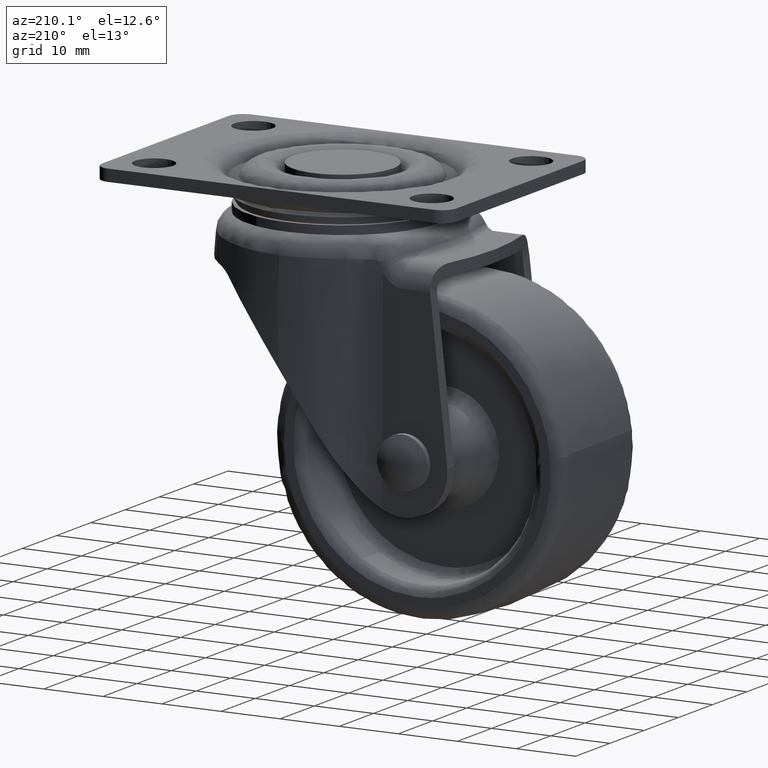
[diagram: clean part render]
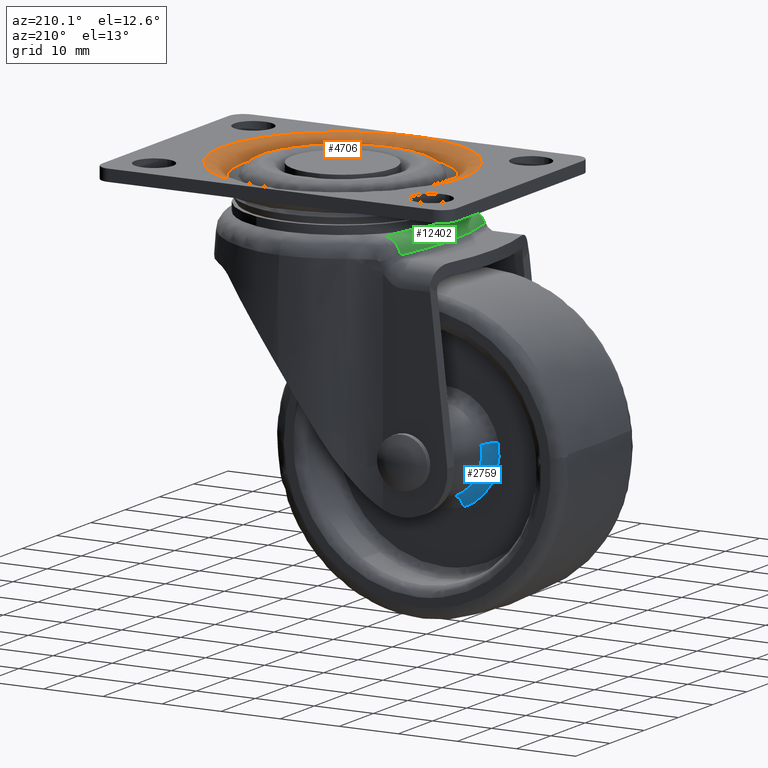
[diagram: same view with three faces highlighted in distinct colors, each labeled with its STEP entity id]
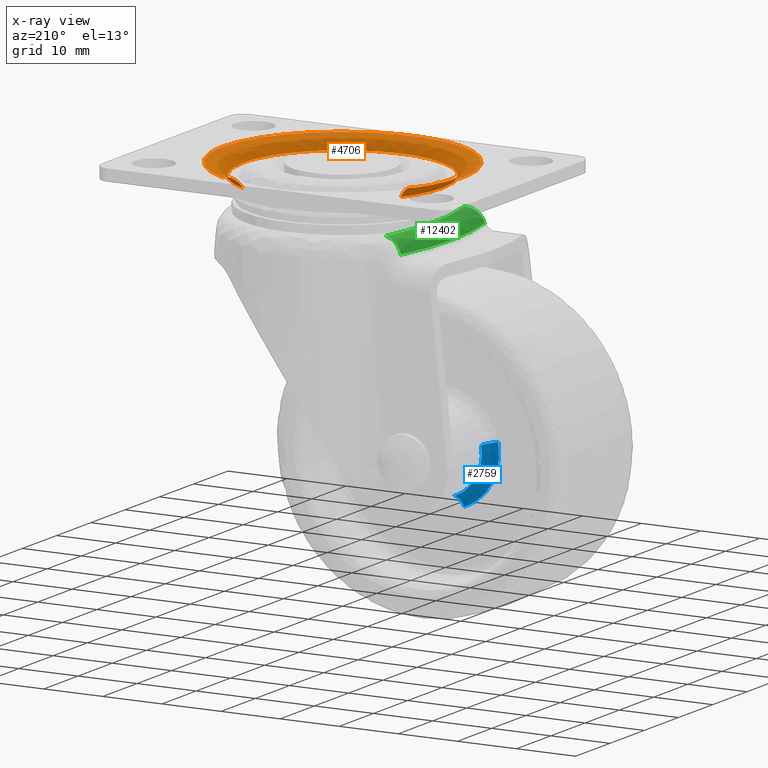
[diagram: x-ray of the same camera — body ghosted, the three highlighted faces saturated]
A machine part, auxiliary view with three faces highlighted in distinct colors.
The next image is the same camera in x-ray (body ghosted, the three faces saturated) — at least one of them is partly hidden behind the body in this view.
Their STEP definitions:

[orange] entity #4706 — the highlighted face is a freeform B-spline surface patch.
#4551=CARTESIAN_POINT('',(8.280344166626080,14.623558427903077,-2.174093960500593));
#4552=CARTESIAN_POINT('',(22.903902594529157,6.343207261277074,-2.174093960500593));
#4553=CARTESIAN_POINT('',(14.623551427903156,-8.280351166626007,-2.174093960500593));
#4554=CARTESIAN_POINT('',(6.343200261277150,-22.903909594529090,-2.174093960500593));
#4555=CARTESIAN_POINT('',(-8.280358166625929,-14.623558427903088,-2.174093960500593));
#4556=CARTESIAN_POINT('',(-22.903916594529008,-6.343207261277066,-2.174093960500593));
#4557=CARTESIAN_POINT('',(-14.623565427903010,8.280351166625998,-2.174093960500593));
#4558=CARTESIAN_POINT('',(8.861078083661916,15.649166665518310,0.123181094649919));
#4559=CARTESIAN_POINT('',(24.510244749180224,6.788081581856476,0.123181094649919));
#4560=CARTESIAN_POINT('',(15.649159665518393,-8.861085083661843,0.123181094649919));
#4561=CARTESIAN_POINT('',(6.788074581856552,-24.510251749180156,0.123181094649919));
#4562=CARTESIAN_POINT('',(-8.861092083661765,-15.649166665518322,0.123181094649919));
#4563=CARTESIAN_POINT('',(-24.510258749180082,-6.788081581856467,0.123181094649919));
#4564=CARTESIAN_POINT('',(-15.649173665518253,8.861085083661832,0.123181094649919));
#4565=CARTESIAN_POINT('',(10.131721040897920,17.893192450443518,-0.004926556543048));
#4566=CARTESIAN_POINT('',(28.024913491341440,7.761464409545676,-0.004926556543048));
#4567=CARTESIAN_POINT('',(17.893185450443593,-10.131728040897842,-0.004926556543048));
#4568=CARTESIAN_POINT('',(7.761457409545753,-28.024920491341366,-0.004926556543048));
#4569=CARTESIAN_POINT('',(-10.131735040897770,-17.893192450443518,-0.004926556543048));
#4570=CARTESIAN_POINT('',(-28.024927491341295,-7.761464409545668,-0.004926556543048));
#4571=CARTESIAN_POINT('',(-17.893199450443454,10.131728040897833,-0.004926556543048));
#4579=(BOUNDED_SURFACE()B_SPLINE_SURFACE(2,2,((#4551,#4558,#4565),(#4552,#4559,#4566),(#4553,#4560,#4567),(#4554,#4561,#4568),(#4555,#4562,#4569),(#4556,#4563,#4570),(#4557,#4564,#4571)),.UNSPECIFIED.,.F.,.F.,.U.)B_SPLINE_SURFACE_WITH_KNOTS((3,2,2,3),(3,3),(0.0,34.069139752857502,68.138279505714991,102.207419258572500),(0.0,4.715427621090448),.UNSPECIFIED.)GEOMETRIC_REPRESENTATION_ITEM()RATIONAL_B_SPLINE_SURFACE(((0.922412950217596,0.774512720686731,0.921293602765448),(0.652244452153151,0.547663196912830,0.651452953979234),(0.922412950217596,0.774512720686731,0.921293602765448),(0.652244452153151,0.547663196912830,0.651452953979234),(0.922412950217596,0.774512720686731,0.921293602765448),(0.652244452153151,0.547663196912830,0.651452953979234),(0.922412950217596,0.774512720686731,0.921293602765448)))REPRESENTATION_ITEM('')SURFACE());
#4580=CARTESIAN_POINT('',(16.899993000000070,0.0,-1.999963000000160));
#4581=VERTEX_POINT('',#4580);
#4582=CARTESIAN_POINT('',(8.327085072241655,14.706105454029579,-1.999962999763023));
#4583=VERTEX_POINT('',#4582);
#4584=CARTESIAN_POINT('',(16.899993000000070,0.0,-1.999963000000160));
#4585=CARTESIAN_POINT('',(16.899993000000073,9.851836329763339,-1.999963000000161));
#4586=CARTESIAN_POINT('',(8.327085072241655,14.706105454029581,-1.999962999763023));
#4594=(BOUNDED_CURVE()B_SPLINE_CURVE(2,(#4584,#4585,#4586),.UNSPECIFIED.,.F.,.U.)B_SPLINE_CURVE_WITH_KNOTS((3,3),(0.500000000000000,0.666016361515287),.UNSPECIFIED.)CURVE()GEOMETRIC_REPRESENTATION_ITEM()RATIONAL_B_SPLINE_CURVE((1.0,0.805499734000360,0.869321279800845))REPRESENTATION_ITEM(''));
#4595=EDGE_CURVE('',#4581,#4583,#4594,.T.);
#4596=ORIENTED_EDGE('',*,*,#4595,.F.);
#4597=CARTESIAN_POINT('',(-16.900006999999921,0.0,-1.999963000000160));
#4598=VERTEX_POINT('',#4597);
#4599=CARTESIAN_POINT('',(-16.900006999999921,0.0,-1.999963000000160));
#4600=CARTESIAN_POINT('',(-16.900006999999928,-16.899999999999991,-1.999963000000159));
#4601=CARTESIAN_POINT('',(-0.000006999999925,-16.899999999999999,-1.999963000000160));
#4602=CARTESIAN_POINT('',(16.899993000000077,-16.899999999999991,-1.999963000000159));
#4603=CARTESIAN_POINT('',(16.899993000000070,0.0,-1.999963000000160));
#4611=(BOUNDED_CURVE()B_SPLINE_CURVE(2,(#4599,#4600,#4601,#4602,#4603),.UNSPECIFIED.,.F.,.U.)B_SPLINE_CURVE_WITH_KNOTS((3,2,3),(0.0,0.250000000000000,0.500000000000000),.UNSPECIFIED.)CURVE()GEOMETRIC_REPRESENTATION_ITEM()RATIONAL_B_SPLINE_CURVE((1.0,0.707106781186548,1.0,0.707106781186548,1.0))REPRESENTATION_ITEM(''));
#4612=EDGE_CURVE('',#4598,#4581,#4611,.T.);
#4613=ORIENTED_EDGE('',*,*,#4612,.F.);
#4614=CARTESIAN_POINT('',(-14.706112454092610,8.327092072286732,-1.999962999629391));
#4615=VERTEX_POINT('',#4614);
#4616=CARTESIAN_POINT('',(-14.706112454092604,8.327092072286732,-1.999962999629392));
#4617=CARTESIAN_POINT('',(-16.900006999999924,4.452552884928871,-1.999963000000161));
#4618=CARTESIAN_POINT('',(-16.900006999999921,0.0,-1.999963000000160));
#4626=(BOUNDED_CURVE()B_SPLINE_CURVE(2,(#4616,#4617,#4618),.UNSPECIFIED.,.F.,.U.)B_SPLINE_CURVE_WITH_KNOTS((3,3),(0.916016361515138,1.0),.UNSPECIFIED.)CURVE()GEOMETRIC_REPRESENTATION_ITEM()RATIONAL_B_SPLINE_CURVE((0.869321279800731,0.901607047186014,1.0))REPRESENTATION_ITEM(''));
#4627=EDGE_CURVE('',#4615,#4598,#4626,.T.);
#4628=ORIENTED_EDGE('',*,*,#4627,.F.);
#4629=CARTESIAN_POINT('',(-17.720498814197430,10.033939125784650,-6.109730E-016));
#4630=VERTEX_POINT('',#4629);
#4631=CARTESIAN_POINT('',(-14.706112454092606,8.327092072286732,-1.999962999629391));
#4632=CARTESIAN_POINT('',(-15.710920300035561,8.896048107174993,-8.546550E-010));
#4633=CARTESIAN_POINT('',(-17.720498814197423,10.033939125784650,-6.109730E-016));
#4641=(BOUNDED_CURVE()B_SPLINE_CURVE(2,(#4631,#4632,#4633),.UNSPECIFIED.,.F.,.U.)B_SPLINE_CURVE_WITH_KNOTS((3,3),(-1.635977675160171,-0.369314626670736),.UNSPECIFIED.)CURVE()GEOMETRIC_REPRESENTATION_ITEM()RATIONAL_B_SPLINE_CURVE((0.909587424262283,0.787287434080422,0.908569702277315))REPRESENTATION_ITEM(''));
#4642=EDGE_CURVE('',#4615,#4630,#4641,.T.);
#4643=ORIENTED_EDGE('',*,*,#4642,.T.);
#4644=CARTESIAN_POINT('',(-20.364087252914331,0.0,0.0));
#4645=VERTEX_POINT('',#4644);
#4646=CARTESIAN_POINT('',(-20.364087252914331,0.0,0.0));
#4647=CARTESIAN_POINT('',(-20.364087252914331,5.365215637857751,0.0));
#4648=CARTESIAN_POINT('',(-17.720498814197430,10.033939125784650,-6.109730E-016));
#4656=(BOUNDED_CURVE()B_SPLINE_CURVE(2,(#4646,#4647,#4648),.UNSPECIFIED.,.F.,.U.)B_SPLINE_CURVE_WITH_KNOTS((3,3),(0.0,0.083983638485495),.UNSPECIFIED.)CURVE()GEOMETRIC_REPRESENTATION_ITEM()RATIONAL_B_SPLINE_CURVE((1.0,0.901607047185272,0.869321279800244))REPRESENTATION_ITEM(''));
#4657=EDGE_CURVE('',#4645,#4630,#4656,.T.);
#4658=ORIENTED_EDGE('',*,*,#4657,.F.);
#4659=CARTESIAN_POINT('',(20.364073252914469,0.0,0.0));
#4660=VERTEX_POINT('',#4659);
#4661=CARTESIAN_POINT('',(20.364073252914469,0.0,0.0));
#4662=CARTESIAN_POINT('',(20.364073252914473,-20.364080252914405,0.0));
#4663=CARTESIAN_POINT('',(-0.000006999999925,-20.364080252914398,0.0));
#4664=CARTESIAN_POINT('',(-20.364087252914320,-20.364080252914405,0.0));
#4665=CARTESIAN_POINT('',(-20.364087252914331,0.0,0.0));
#4673=(BOUNDED_CURVE()B_SPLINE_CURVE(2,(#4661,#4662,#4663,#4664,#4665),.UNSPECIFIED.,.F.,.U.)B_SPLINE_CURVE_WITH_KNOTS((3,2,3),(0.500000000000000,0.750000000000000,1.0),.UNSPECIFIED.)CURVE()GEOMETRIC_REPRESENTATION_ITEM()RATIONAL_B_SPLINE_CURVE((1.0,0.707106781186548,1.0,0.707106781186548,1.0))REPRESENTATION_ITEM(''));
#4674=EDGE_CURVE('',#4660,#4645,#4673,.T.);
#4675=ORIENTED_EDGE('',*,*,#4674,.F.);
#4676=CARTESIAN_POINT('',(10.033932125784720,17.720491814197491,-6.720702E-016));
#4677=VERTEX_POINT('',#4676);
#4678=CARTESIAN_POINT('',(10.033932125784723,17.720491814197498,-6.720702E-016));
#4679=CARTESIAN_POINT('',(20.364073252914476,11.871218086195571,0.0));
#4680=CARTESIAN_POINT('',(20.364073252914469,0.0,0.0));
#4688=(BOUNDED_CURVE()B_SPLINE_CURVE(2,(#4678,#4679,#4680),.UNSPECIFIED.,.F.,.U.)B_SPLINE_CURVE_WITH_KNOTS((3,3),(0.333983638485496,0.500000000000000),.UNSPECIFIED.)CURVE()GEOMETRIC_REPRESENTATION_ITEM()RATIONAL_B_SPLINE_CURVE((0.869321279800244,0.805499734001276,1.0))REPRESENTATION_ITEM(''));
#4689=EDGE_CURVE('',#4677,#4660,#4688,.T.);
#4690=ORIENTED_EDGE('',*,*,#4689,.F.);
#4691=CARTESIAN_POINT('',(8.327085072241655,14.706105454029583,-1.999962999763024));
#4692=CARTESIAN_POINT('',(8.896041107073689,15.710913299856603,-8.546607E-010));
#4693=CARTESIAN_POINT('',(10.033932125784723,17.720491814197494,-6.720702E-016));
#4701=(BOUNDED_CURVE()B_SPLINE_CURVE(2,(#4691,#4692,#4693),.UNSPECIFIED.,.F.,.U.)B_SPLINE_CURVE_WITH_KNOTS((3,3),(-1.635977675257954,-0.369314626670739),.UNSPECIFIED.)CURVE()GEOMETRIC_REPRESENTATION_ITEM()RATIONAL_B_SPLINE_CURVE((0.909587424281166,0.787287434071060,0.908569702277315))REPRESENTATION_ITEM(''));
#4702=EDGE_CURVE('',#4583,#4677,#4701,.T.);
#4703=ORIENTED_EDGE('',*,*,#4702,.F.);
#4704=EDGE_LOOP('',(#4596,#4613,#4628,#4643,#4658,#4675,#4690,#4703));
#4705=FACE_OUTER_BOUND('',#4704,.T.);
#4706=ADVANCED_FACE('',(#4705),#4579,.T.);

[blue] entity #2759 — the highlighted face is a freeform B-spline surface patch.
#929=CARTESIAN_POINT('',(-21.581159640762991,4.652704545841395,-46.777003849779888));
#930=VERTEX_POINT('',#929);
#944=CARTESIAN_POINT('',(-26.122998483508631,4.652704545884804,-38.641714368788982));
#945=VERTEX_POINT('',#944);
#946=CARTESIAN_POINT('',(-26.122998483508631,4.652704545884803,-38.641714368788982));
#947=CARTESIAN_POINT('',(-26.251441447704504,4.652704546117460,-39.315035966931404));
#948=CARTESIAN_POINT('',(-26.251441447704511,4.652704546117460,-40.000499000000097));
#949=CARTESIAN_POINT('',(-26.251441447704504,4.652704546117461,-44.998101129439050));
#950=CARTESIAN_POINT('',(-21.581159640762994,4.652704545841395,-46.777003849779888));
#958=(BOUNDED_CURVE()B_SPLINE_CURVE(2,(#946,#947,#948,#949,#950),.UNSPECIFIED.,.F.,.U.)B_SPLINE_CURVE_WITH_KNOTS((3,2,3),(0.717838633736233,0.750000000000000,0.939552769333913),.UNSPECIFIED.)CURVE()GEOMETRIC_REPRESENTATION_ITEM()RATIONAL_B_SPLINE_CURVE((0.934335795152827,0.962320615654268,1.0,0.777925117019146,0.892609506586496))REPRESENTATION_ITEM(''));
#959=EDGE_CURVE('',#945,#930,#958,.T.);
#2639=CARTESIAN_POINT('',(-22.282246796789380,3.0,-48.617618602265068));
#2640=VERTEX_POINT('',#2639);
#2656=CARTESIAN_POINT('',(-22.282246796789376,3.000000000000000,-48.617618602265068));
#2657=CARTESIAN_POINT('',(-21.684889395754688,3.000000000046670,-47.049333068419962));
#2658=CARTESIAN_POINT('',(-21.581159640762991,4.652704545841396,-46.777003849779888));
#2666=(BOUNDED_CURVE()B_SPLINE_CURVE(2,(#2656,#2657,#2658),.UNSPECIFIED.,.F.,.U.)B_SPLINE_CURVE_WITH_KNOTS((3,3),(-1.699374434042676,-0.299104234625843),.UNSPECIFIED.)CURVE()GEOMETRIC_REPRESENTATION_ITEM()RATIONAL_B_SPLINE_CURVE((0.836173455112642,0.640708742115867,0.836598644507058))REPRESENTATION_ITEM(''));
#2667=EDGE_CURVE('',#2640,#930,#2666,.T.);
#2674=CARTESIAN_POINT('',(-28.057726838156011,3.0,-38.272645196332398));
#2675=VERTEX_POINT('',#2674);
#2676=CARTESIAN_POINT('',(-28.057726838156007,3.0,-38.272645196332398));
#2677=CARTESIAN_POINT('',(-26.409252334184764,3.000000003074429,-38.587108526442641));
#2678=CARTESIAN_POINT('',(-26.122998483508628,4.652704545884804,-38.641714368788989));
#2686=(BOUNDED_CURVE()B_SPLINE_CURVE(2,(#2676,#2677,#2678),.UNSPECIFIED.,.F.,.U.)B_SPLINE_CURVE_WITH_KNOTS((3,3),(-1.699374432078043,-0.299104234577822),.UNSPECIFIED.)CURVE()GEOMETRIC_REPRESENTATION_ITEM()RATIONAL_B_SPLINE_CURVE((0.891308979333242,0.682955733773965,0.891762205424001))REPRESENTATION_ITEM(''));
#2687=EDGE_CURVE('',#2675,#945,#2686,.T.);
#2722=CARTESIAN_POINT('',(-28.182331571436322,3.004026887481622,-38.248875572594983));
#2723=CARTESIAN_POINT('',(-29.650770508750540,3.004026887481623,-45.946702059650924));
#2724=CARTESIAN_POINT('',(-22.327399790221204,3.004026887481623,-48.736162017497186));
#2725=CARTESIAN_POINT('',(-26.312940167450428,2.883077667061051,-38.605481054844994));
#2726=CARTESIAN_POINT('',(-27.482425935263286,2.883077667061052,-44.736140145219089));
#2727=CARTESIAN_POINT('',(-21.649988773523305,2.883077667061051,-46.957705943897551));
#2728=CARTESIAN_POINT('',(-26.105263944713943,4.778261440697989,-38.645097413090170));
#2729=CARTESIAN_POINT('',(-27.241538120302316,4.778261440697989,-44.601655240002444));
#2730=CARTESIAN_POINT('',(-21.574733179168934,4.778261440697989,-46.760131996098082));
#2738=(BOUNDED_SURFACE()B_SPLINE_SURFACE(2,2,((#2722,#2725,#2728),(#2723,#2726,#2729),(#2724,#2727,#2730)),.UNSPECIFIED.,.F.,.F.,.U.)B_SPLINE_SURFACE_WITH_KNOTS((3,3),(3,3),(0.0,13.595956791642690),(0.0,3.202648635124233),.UNSPECIFIED.)GEOMETRIC_REPRESENTATION_ITEM()RATIONAL_B_SPLINE_SURFACE(((0.913164367681406,0.661077738289552,0.913662807919729),(0.677799874840163,0.490687574034433,0.678169844084592),(0.856676889399508,0.620184098868323,0.857144496599296)))REPRESENTATION_ITEM('')SURFACE());
#2739=CARTESIAN_POINT('',(-28.057726838156011,3.000000000000000,-38.272645196332391));
#2740=CARTESIAN_POINT('',(-28.221057112678903,3.000000000000000,-39.128852469581155));
#2741=CARTESIAN_POINT('',(-28.221057112678899,3.0,-40.000499000000097));
#2742=CARTESIAN_POINT('',(-28.221057112678906,3.000000000000000,-46.355535442740127));
#2743=CARTESIAN_POINT('',(-22.282246796789384,3.000000000000000,-48.617618602265068));
#2751=(BOUNDED_CURVE()B_SPLINE_CURVE(2,(#2739,#2740,#2741,#2742,#2743),.UNSPECIFIED.,.F.,.U.)B_SPLINE_CURVE_WITH_KNOTS((3,2,3),(0.717838633727070,0.750000000000000,0.939552769335690),.UNSPECIFIED.)CURVE()GEOMETRIC_REPRESENTATION_ITEM()RATIONAL_B_SPLINE_CURVE((0.934335795136880,0.962320615643533,1.0,0.777925117017064,0.892609506588646))REPRESENTATION_ITEM(''));
#2752=EDGE_CURVE('',#2675,#2640,#2751,.T.);
#2753=ORIENTED_EDGE('',*,*,#2752,.F.);
#2754=ORIENTED_EDGE('',*,*,#2687,.T.);
#2755=ORIENTED_EDGE('',*,*,#959,.T.);
#2756=ORIENTED_EDGE('',*,*,#2667,.F.);
#2757=EDGE_LOOP('',(#2753,#2754,#2755,#2756));
#2758=FACE_OUTER_BOUND('',#2757,.T.);
#2759=ADVANCED_FACE('',(#2758),#2738,.F.);

[green] entity #12402 — the highlighted face is a freeform B-spline surface patch.
#7885=CARTESIAN_POINT('',(-14.869671297431900,6.554035055317600,-7.312300000000000));
#7886=VERTEX_POINT('',#7885);
#7900=CARTESIAN_POINT('',(-14.869671297431900,-6.554035055317600,-7.312300000000000));
#7901=VERTEX_POINT('',#7900);
#9431=CARTESIAN_POINT('',(-14.869671297431900,6.554035055317616,-7.312300000000000));
#9432=CARTESIAN_POINT('',(-15.796220195287614,2.168404E-014,-7.312300000000000));
#9433=CARTESIAN_POINT('',(-14.869671297431900,-6.554035055317593,-7.312300000000000));
#9441=(BOUNDED_CURVE()B_SPLINE_CURVE(2,(#9431,#9432,#9433),.UNSPECIFIED.,.F.,.U.)CURVE()GEOMETRIC_REPRESENTATION_ITEM()QUASI_UNIFORM_CURVE()RATIONAL_B_SPLINE_CURVE((1.0,0.990154488175586,1.0))REPRESENTATION_ITEM(''));
#9442=EDGE_CURVE('',#7886,#7901,#9441,.T.);
#11238=CARTESIAN_POINT('',(-16.936590326066050,-12.249797822229620,-9.639758110070270));
#11239=VERTEX_POINT('',#11238);
#11385=CARTESIAN_POINT('',(-13.878344654079660,-11.571070394429320,-7.312300000000000));
#11386=VERTEX_POINT('',#11385);
#11400=CARTESIAN_POINT('',(-16.936590326066050,-12.249797822229620,-9.639758110070270));
#11401=CARTESIAN_POINT('',(-16.887064896134710,-12.238845087086810,-9.471330714252082));
#11402=CARTESIAN_POINT('',(-16.824769174000039,-12.225066549350640,-9.308390826820720));
#11403=CARTESIAN_POINT('',(-16.712398272356261,-12.200205397664639,-9.072114697046997));
#11404=CARTESIAN_POINT('',(-16.671600017504190,-12.191178107766540,-8.994445644008430));
#11405=CARTESIAN_POINT('',(-16.584669896976148,-12.171940462320000,-8.843797595302389));
#11406=CARTESIAN_POINT('',(-16.538513310780530,-12.161724646968270,-8.770699841726943));
#11407=CARTESIAN_POINT('',(-16.392172752641269,-12.129329671290320,-8.557917145701385));
#11408=CARTESIAN_POINT('',(-16.284166611665501,-12.105413834030911,-8.424702532105421));
#11409=CARTESIAN_POINT('',(-16.106389510751139,-12.066031440555371,-8.237924839509873));
#11410=CARTESIAN_POINT('',(-16.044490429206501,-12.052316512885611,-8.177849629588859));
#11411=CARTESIAN_POINT('',(-15.915239781981580,-12.023671941067580,-8.062210112292348));
#11412=CARTESIAN_POINT('',(-15.848652546891900,-12.008911671462609,-8.007341752515940));
#11413=CARTESIAN_POINT('',(-15.643946811944859,-11.963523840503020,-7.851950402019909));
#11414=CARTESIAN_POINT('',(-15.500587813618830,-11.931723607386330,-7.760291964854386));
#11415=CARTESIAN_POINT('',(-15.275339335723061,-11.881730207137981,-7.640498192053356));
#11416=CARTESIAN_POINT('',(-15.198546864132551,-11.864681785159011,-7.603529743518274));
#11417=CARTESIAN_POINT('',(-15.041464307838771,-11.829798186853070,-7.535654655438235));
#11418=CARTESIAN_POINT('',(-14.960810171239221,-11.811882088188410,-7.504644982799601));
#11419=CARTESIAN_POINT('',(-14.717604869171790,-11.757841050239200,-7.422408872955639));
#11420=CARTESIAN_POINT('',(-14.553053898273561,-11.721255481198989,-7.381437868079098));
#11421=CARTESIAN_POINT('',(-14.219267608496009,-11.646994260575410,-7.326384891595565));
#11422=CARTESIAN_POINT('',(-14.050032795452429,-11.609318740209231,-7.312300000000001));
#11423=CARTESIAN_POINT('',(-13.878344654079660,-11.571070394429320,-7.312300000000000));
#11424=B_SPLINE_CURVE_WITH_KNOTS('',3,(#11400,#11401,#11402,#11403,#11404,#11405,#11406,#11407,#11408,#11409,#11410,#11411,#11412,#11413,#11414,#11415,#11416,#11417,#11418,#11419,#11420,#11421,#11422,#11423),.UNSPECIFIED.,.F.,.U.,(4,2,2,2,2,2,2,2,2,2,2,4),(0.0,0.125000000000000,0.187500000000001,0.250000000000001,0.375000000000000,0.437500000000001,0.500000000000001,0.625000000000001,0.687500000000001,0.750000000000001,0.875000000000001,1.0),.UNSPECIFIED.);
#11425=EDGE_CURVE('',#11239,#11386,#11424,.T.);
#11830=CARTESIAN_POINT('',(-13.878344654079660,11.571070394429320,-7.312300000000000));
#11831=VERTEX_POINT('',#11830);
#11956=CARTESIAN_POINT('',(-16.936590326066050,12.249797822229620,-9.639758110070270));
#11957=VERTEX_POINT('',#11956);
#11971=CARTESIAN_POINT('',(-13.878344654079660,11.571070394429320,-7.312300000000000));
#11972=CARTESIAN_POINT('',(-14.049878918290750,11.609284459758410,-7.312300000000001));
#11973=CARTESIAN_POINT('',(-14.219388145517650,11.647021152143241,-7.326361586947810));
#11974=CARTESIAN_POINT('',(-14.470710053286361,11.702935474900579,-7.367878245020258));
#11975=CARTESIAN_POINT('',(-14.553991271271730,11.721457918066180,-7.385138004231475));
#11976=CARTESIAN_POINT('',(-14.719555410572550,11.758269270898650,-7.426586918602536));
#11977=CARTESIAN_POINT('',(-14.802179190233749,11.776633904485120,-7.450901307691648));
#11978=CARTESIAN_POINT('',(-15.045471933868679,11.830693896850180,-7.533489195776720));
#11979=CARTESIAN_POINT('',(-15.201582609939370,11.865360173370130,-7.601179269511428));
#11980=CARTESIAN_POINT('',(-15.426873720586300,11.915362873149560,-7.721135733054442));
#11981=CARTESIAN_POINT('',(-15.500484406494540,11.931696040650881,-7.764206389078293));
#11982=CARTESIAN_POINT('',(-15.608637961006799,11.955687780431241,-7.833508075428513));
#11983=CARTESIAN_POINT('',(-15.644311619243060,11.963600258655241,-7.857392183153277));
#11984=CARTESIAN_POINT('',(-15.714892759626780,11.979253355582230,-7.906750498377670));
#11985=CARTESIAN_POINT('',(-15.749873429172530,11.987010199547321,-7.932282619550623));
#11986=CARTESIAN_POINT('',(-15.921573250769301,12.025079546831700,-8.063022994666442));
#11987=CARTESIAN_POINT('',(-16.049163948459039,12.053354540663211,-8.177620296995970));
#11988=CARTESIAN_POINT('',(-16.226352767942839,12.092606468743890,-8.364054432641968));
#11989=CARTESIAN_POINT('',(-16.283037869394452,12.105161082626090,-8.428634090693672));
#11990=CARTESIAN_POINT('',(-16.391590788346310,12.129199219298400,-8.562726094395503));
#11991=CARTESIAN_POINT('',(-16.443601455947690,12.140714362066060,-8.632449149054063));
#11992=CARTESIAN_POINT('',(-16.591202484756401,12.173388144133060,-8.847828090959080));
#11993=CARTESIAN_POINT('',(-16.677174432796921,12.192412453707719,-8.997687427765069));
#11994=CARTESIAN_POINT('',(-16.825127407089880,12.225145759519449,-9.309514524360621));
#11995=CARTESIAN_POINT('',(-16.887109332510050,12.238854914358379,-9.471481834656034));
#11996=CARTESIAN_POINT('',(-16.936590326066050,12.249797822229620,-9.639758110070270));
#11997=B_SPLINE_CURVE_WITH_KNOTS('',3,(#11971,#11972,#11973,#11974,#11975,#11976,#11977,#11978,#11979,#11980,#11981,#11982,#11983,#11984,#11985,#11986,#11987,#11988,#11989,#11990,#11991,#11992,#11993,#11994,#11995,#11996),.UNSPECIFIED.,.F.,.U.,(4,2,2,2,2,2,2,2,2,2,2,2,4),(0.0,0.124999999999994,0.187499999999991,0.249999999999989,0.374999999999985,0.437499999999983,0.468749999999982,0.499999999999981,0.624999999999984,0.687499999999986,0.749999999999987,0.874999999999994,1.0),.UNSPECIFIED.);
#11998=EDGE_CURVE('',#11831,#11957,#11997,.T.);
#12337=CARTESIAN_POINT('',(-16.936590326066032,12.249797822229620,-9.639758110070270));
#12338=CARTESIAN_POINT('',(-20.035190198945092,8.673617E-015,-9.639758110070270));
#12339=CARTESIAN_POINT('',(-16.936590326066039,-12.249797822229590,-9.639758110070270));
#12347=(BOUNDED_CURVE()B_SPLINE_CURVE(2,(#12337,#12338,#12339),.UNSPECIFIED.,.F.,.U.)CURVE()GEOMETRIC_REPRESENTATION_ITEM()QUASI_UNIFORM_CURVE()RATIONAL_B_SPLINE_CURVE((1.0,0.969465588429976,1.0))REPRESENTATION_ITEM(''));
#12348=EDGE_CURVE('',#11957,#11239,#12347,.T.);
#12353=CARTESIAN_POINT('',(-13.393887012570044,-12.633538641257266,-7.317982657841806));
#12354=CARTESIAN_POINT('',(-16.949794448593916,4.826313E-015,-7.317982657841807));
#12355=CARTESIAN_POINT('',(-13.393887012570044,12.633538641257266,-7.317982657841808));
#12356=CARTESIAN_POINT('',(-16.030897817133940,-13.375766657895587,-7.156267405493581));
#12357=CARTESIAN_POINT('',(-19.795716960204814,4.573033E-015,-7.156267405493580));
#12358=CARTESIAN_POINT('',(-16.030897817133926,13.375766657895596,-7.156267405493581));
#12359=CARTESIAN_POINT('',(-16.641752683353822,-13.547701332954022,-9.826131640775897));
#12360=CARTESIAN_POINT('',(-20.454965535179753,4.021362E-015,-9.826131640775897));
#12361=CARTESIAN_POINT('',(-16.641752683353822,13.547701332954022,-9.826131640775897));
#12369=(BOUNDED_SURFACE()B_SPLINE_SURFACE(2,2,((#12353,#12356,#12359),(#12354,#12357,#12360),(#12355,#12358,#12361)),.UNSPECIFIED.,.F.,.F.,.U.)B_SPLINE_SURFACE_WITH_KNOTS((3,3),(3,3),(0.0,27.611787094804608),(0.0,4.761247367087436),.UNSPECIFIED.)GEOMETRIC_REPRESENTATION_ITEM()RATIONAL_B_SPLINE_SURFACE(((0.873736991283650,0.668881162629352,0.872690346686938),(0.841056442523753,0.643862874897514,0.840048945771437),(0.873736991283650,0.668881162629352,0.872690346686938)))REPRESENTATION_ITEM('')SURFACE());
#12370=ORIENTED_EDGE('',*,*,#12348,.T.);
#12371=ORIENTED_EDGE('',*,*,#11425,.T.);
#12372=CARTESIAN_POINT('',(-14.869671297431900,-6.554035055317598,-7.312300000000000));
#12373=CARTESIAN_POINT('',(-14.511207751395441,-9.089662319257508,-7.312300000000000));
#12374=CARTESIAN_POINT('',(-13.878344654079660,-11.571070394429309,-7.312300000000000));
#12382=(BOUNDED_CURVE()B_SPLINE_CURVE(2,(#12372,#12373,#12374),.UNSPECIFIED.,.F.,.U.)CURVE()GEOMETRIC_REPRESENTATION_ITEM()QUASI_UNIFORM_CURVE()RATIONAL_B_SPLINE_CURVE((1.0,0.998507654246091,1.0))REPRESENTATION_ITEM(''));
#12383=EDGE_CURVE('',#7901,#11386,#12382,.T.);
#12384=ORIENTED_EDGE('',*,*,#12383,.F.);
#12385=ORIENTED_EDGE('',*,*,#9442,.F.);
#12386=CARTESIAN_POINT('',(-13.878344654079649,11.571070394429320,-7.312300000000000));
#12387=CARTESIAN_POINT('',(-14.511207751395443,9.089662319257466,-7.312300000000000));
#12388=CARTESIAN_POINT('',(-14.869671297431900,6.554035055317611,-7.312300000000000));
#12396=(BOUNDED_CURVE()B_SPLINE_CURVE(2,(#12386,#12387,#12388),.UNSPECIFIED.,.F.,.U.)CURVE()GEOMETRIC_REPRESENTATION_ITEM()QUASI_UNIFORM_CURVE()RATIONAL_B_SPLINE_CURVE((1.0,0.998507654246091,1.0))REPRESENTATION_ITEM(''));
#12397=EDGE_CURVE('',#11831,#7886,#12396,.T.);
#12398=ORIENTED_EDGE('',*,*,#12397,.F.);
#12399=ORIENTED_EDGE('',*,*,#11998,.T.);
#12400=EDGE_LOOP('',(#12370,#12371,#12384,#12385,#12398,#12399));
#12401=FACE_OUTER_BOUND('',#12400,.T.);
#12402=ADVANCED_FACE('',(#12401),#12369,.T.);